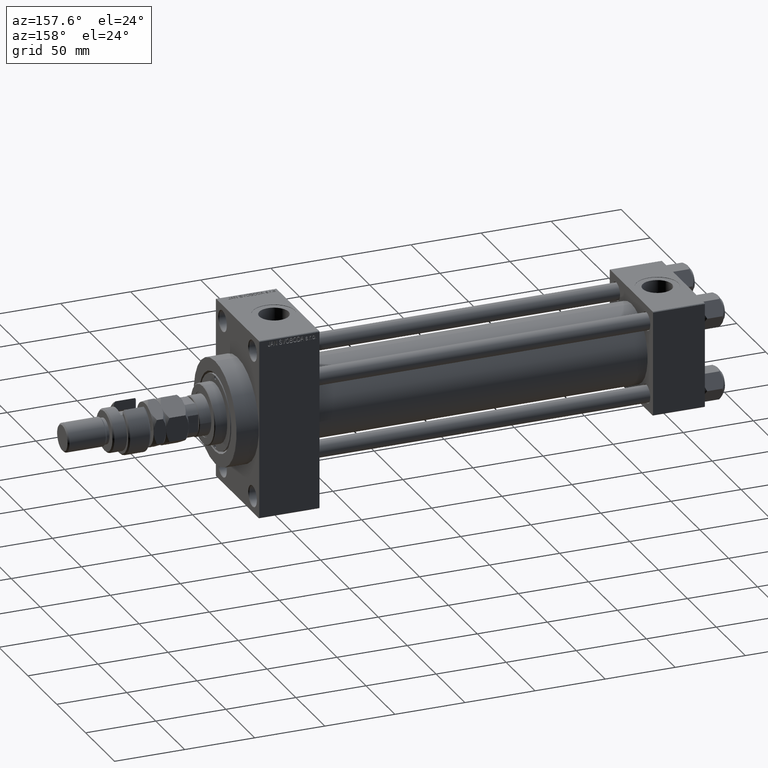
[diagram: clean part render]
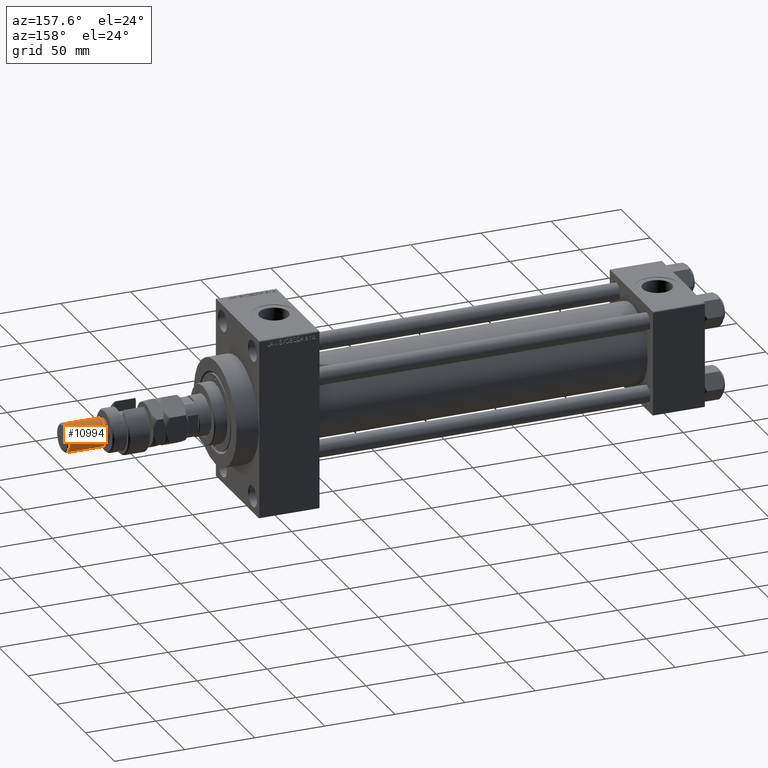
[diagram: same view with one face highlighted and labeled with its STEP entity id]
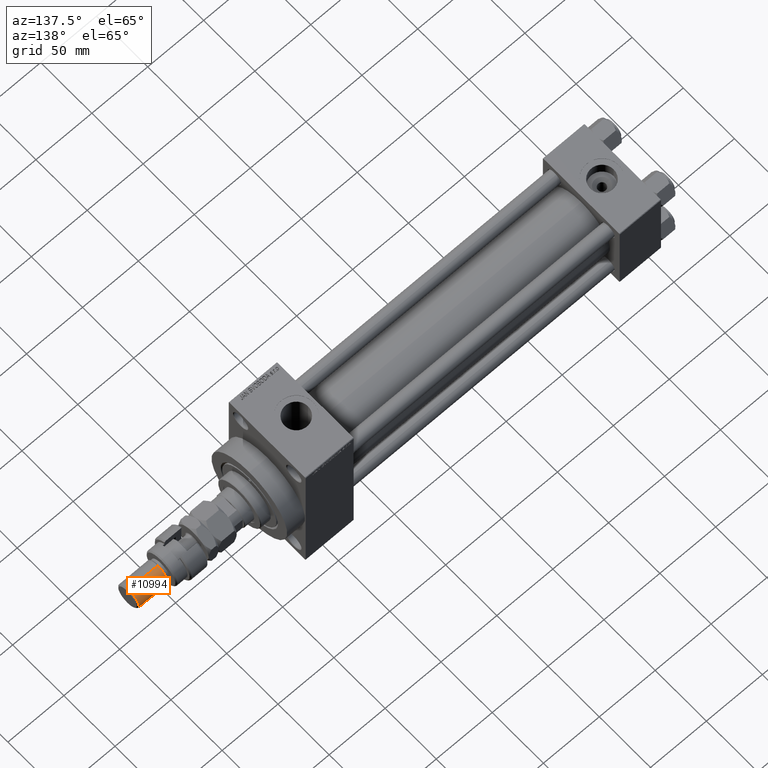
[diagram: same view with one face highlighted and labeled with its STEP entity id]
A machine part, auxiliary view. The second image highlights one B-rep face of the part: STEP entity #10994.
A second angle (auxiliary view) of the same face is appended — the face is thin or edge-on in the first view.
In plain terms, the highlighted cylindrical surface (edge-blend (fillet) strip) has radius 10 mm, axis along (-1, -0, 0).
Its self-contained STEP definition (entity closure, byte-faithful):
#26 = CARTESIAN_POINT ( 'NONE',  ( 0.000000000000000000, 0.000000000000000000, 54.99999999999998579 ) ) ;
#543 = DIRECTION ( 'NONE',  ( 1.000000000000000000, 0.000000000000000000, 0.000000000000000000 ) ) ;
#862 = DIRECTION ( 'NONE',  ( 1.000000000000000000, 0.000000000000000000, 0.000000000000000000 ) ) ;
#883 = CARTESIAN_POINT ( 'NONE',  ( 10.00000000000000000, 1.224646799147353256E-15, 29.00000000000000711 ) ) ;
#1747 = ORIENTED_EDGE ( 'NONE', *, *, #44774, .T. ) ;
#2175 = ORIENTED_EDGE ( 'NONE', *, *, #5257, .T. ) ;
#2686 = VECTOR ( 'NONE', #32328, 1000.000000000000000 ) ;
#3798 = CYLINDRICAL_SURFACE ( 'NONE', #50204, 10.00000000000000000 ) ;
#5257 = EDGE_CURVE ( 'NONE', #5292, #8658, #13742, .T. ) ;
#5292 = VERTEX_POINT ( 'NONE', #14239 ) ;
#6943 = ORIENTED_EDGE ( 'NONE', *, *, #28524, .T. ) ;
#7977 = CARTESIAN_POINT ( 'NONE',  ( 0.000000000000000000, 0.000000000000000000, 29.00000000000000711 ) ) ;
#8658 = VERTEX_POINT ( 'NONE', #883 ) ;
#9051 = AXIS2_PLACEMENT_3D ( 'NONE', #26, #22912, #543 ) ;
#10528 = CARTESIAN_POINT ( 'NONE',  ( -10.00000000000000000, 0.000000000000000000, 29.00000000000000711 ) ) ;
#10994 = ADVANCED_FACE ( 'NONE', ( #34825 ), #3798, .T. ) ;
#11168 = DIRECTION ( 'NONE',  ( -0.000000000000000000, -0.000000000000000000, -1.000000000000000000 ) ) ;
#13742 = LINE ( 'NONE', #20881, #2686 ) ;
#14239 = CARTESIAN_POINT ( 'NONE',  ( 10.00000000000000000, 1.224646799147353256E-15, 54.99999999999998579 ) ) ;
#14650 = VERTEX_POINT ( 'NONE', #10528 ) ;
#15490 = DIRECTION ( 'NONE',  ( -1.000000000000000000, 0.000000000000000000, 0.000000000000000000 ) ) ;
#15845 = CARTESIAN_POINT ( 'NONE',  ( -10.00000000000000000, 0.000000000000000000, 54.99999999999998579 ) ) ;
#16641 = AXIS2_PLACEMENT_3D ( 'NONE', #7977, #35686, #862 ) ;
#20117 = CARTESIAN_POINT ( 'NONE',  ( -10.00000000000000000, 0.000000000000000000, 56.00000000000000711 ) ) ;
#20881 = CARTESIAN_POINT ( 'NONE',  ( 10.00000000000000000, 1.224646799147353256E-15, 56.00000000000000711 ) ) ;
#22302 = CIRCLE ( 'NONE', #16641, 10.00000000000000000 ) ;
#22780 = EDGE_CURVE ( 'NONE', #44448, #14650, #34864, .T. ) ;
#22876 = CIRCLE ( 'NONE', #9051, 10.00000000000000000 ) ;
#22912 = DIRECTION ( 'NONE',  ( 0.000000000000000000, 0.000000000000000000, -1.000000000000000000 ) ) ;
#23252 = ORIENTED_EDGE ( 'NONE', *, *, #22780, .F. ) ;
#27742 = DIRECTION ( 'NONE',  ( -0.000000000000000000, -0.000000000000000000, -1.000000000000000000 ) ) ;
#28524 = EDGE_CURVE ( 'NONE', #8658, #14650, #22302, .T. ) ;
#30423 = EDGE_LOOP ( 'NONE', ( #1747, #2175, #6943, #23252 ) ) ;
#31036 = VECTOR ( 'NONE', #27742, 1000.000000000000000 ) ;
#32328 = DIRECTION ( 'NONE',  ( -0.000000000000000000, -0.000000000000000000, -1.000000000000000000 ) ) ;
#34825 = FACE_OUTER_BOUND ( 'NONE', #30423, .T. ) ;
#34864 = LINE ( 'NONE', #20117, #31036 ) ;
#35686 = DIRECTION ( 'NONE',  ( -0.000000000000000000, -0.000000000000000000, 1.000000000000000000 ) ) ;
#39425 = CARTESIAN_POINT ( 'NONE',  ( 0.000000000000000000, 0.000000000000000000, 56.00000000000000711 ) ) ;
#44448 = VERTEX_POINT ( 'NONE', #15845 ) ;
#44774 = EDGE_CURVE ( 'NONE', #44448, #5292, #22876, .T. ) ;
#50204 = AXIS2_PLACEMENT_3D ( 'NONE', #39425, #11168, #15490 ) ;